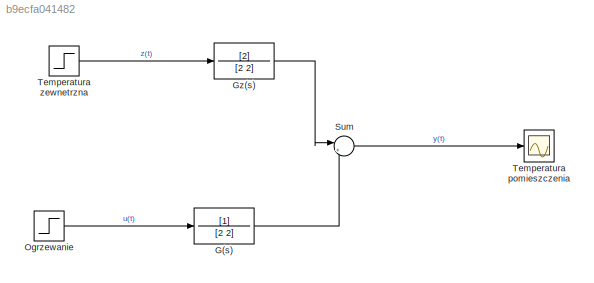
MODEL slx_b9ecfa041482
KIND model
CONFIG AbsTol = auto
CONFIG EnableMultiTasking = off
CONFIG FixedStep = auto
CONFIG MaxStep = auto
CONFIG MinStep = auto
CONFIG RelTol = 1e-3
CONFIG SampleTimeConstraint = Unconstrained
CONFIG SolverName = VariableStepAuto
CONFIG StartTime = 0.0
CONFIG StopTime = 10
BLOCK [TransferFcn] G(s)
  Denominator = [2 2]
BLOCK [TransferFcn] Gz(s)
  Denominator = [2 2]
  Numerator = [2]
BLOCK [Step] Ogrzewanie
  After = 0
  SampleTime = 0
  Time = 0
BLOCK [Sum] Sum
  Inputs = |++
BLOCK [Scope] Temperatura pomieszczenia
  Floating = off
  NumInputPorts = 1
  ScopeSpecificationString = Simulink.scopes.TimeScopeBlockCfg('CurrentConfiguration', extmgr.ConfigurationSet(extmgr.Configuration('Core','General UI',true),extmgr.Configuration('Core','Source UI',true),extmgr.Configuration('Sources','WiredSimulink',true),extmgr.Configuration('Visuals','Time Domain',true,'SerializedDisplays',{struct('MinYLimReal','-2.25','MaxYLimReal','0.25','YLabelReal','','MinYLimMag','0.00000','MaxYLimMag...<+1335ch>
BLOCK [Step] Temperatura zewnetrzna
  After = -2
  SampleTime = 0
  Time = 2
LINE G(s):1 -> Sum:2
LINE Gz(s):1 -> Sum:1
LINE Ogrzewanie:1 -> G(s):1
LINE Sum:1 -> Temperatura pomieszczenia:1
LINE Temperatura zewnetrzna:1 -> Gz(s):1
